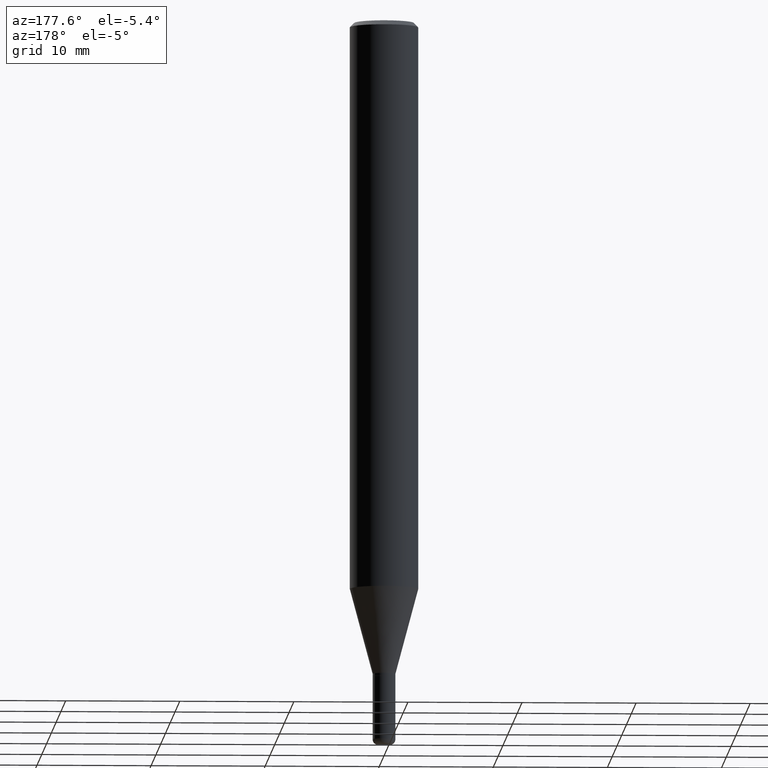
[diagram: clean part render]
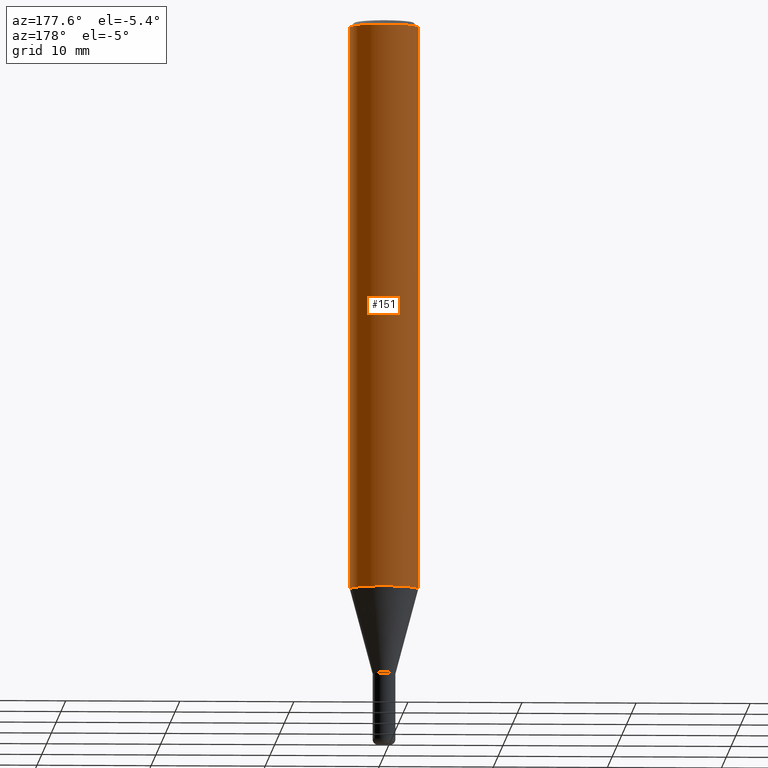
[diagram: same view with one face highlighted and labeled with its STEP entity id]
A machine part, auxiliary view. The second image highlights one B-rep face of the part: STEP entity #151.
In plain terms, the highlighted cylindrical surface (edge-blend (fillet) strip) has radius 2.9997 mm, axis along (-0, 0, 1).
Its self-contained STEP definition (entity closure, byte-faithful):
#34 = EDGE_CURVE ( 'NONE', #153, #351, #242, .T. ) ;
#38 = AXIS2_PLACEMENT_3D ( 'NONE', #444, #200, #245 ) ;
#42 = CARTESIAN_POINT ( 'NONE',  ( 0.1180999999999999966, -7.667645655887934594E-15, -1.959900998903951086 ) ) ;
#45 = DIRECTION ( 'NONE',  ( -2.445468806185136597E-29, 3.491481338843145583E-15, 1.000000000000000000 ) ) ;
#78 = CARTESIAN_POINT ( 'NONE',  ( 3.668203209277694140E-31, -5.237222008264703607E-17, -0.01499999999999995781 ) ) ;
#87 = EDGE_CURVE ( 'NONE', #152, #325, #155, .T. ) ;
#123 = AXIS2_PLACEMENT_3D ( 'NONE', #78, #45, #321 ) ;
#130 = EDGE_CURVE ( 'NONE', #153, #152, #481, .T. ) ;
#131 = DIRECTION ( 'NONE',  ( -2.445468806185136877E-29, 3.491481338843145188E-15, 1.000000000000000000 ) ) ;
#148 = LINE ( 'NONE', #269, #427 ) ;
#151 = ADVANCED_FACE ( 'NONE', ( #293 ), #290, .T. ) ;
#152 = VERTEX_POINT ( 'NONE', #251 ) ;
#153 = VERTEX_POINT ( 'NONE', #42 ) ;
#155 = CIRCLE ( 'NONE', #123, 0.1180999999999999966 ) ;
#180 = DIRECTION ( 'NONE',  ( -2.445468806185136877E-29, 3.491481338843145188E-15, 1.000000000000000000 ) ) ;
#188 = ORIENTED_EDGE ( 'NONE', *, *, #87, .F. ) ;
#200 = DIRECTION ( 'NONE',  ( -2.445468806185136597E-29, 3.491481338843145583E-15, 1.000000000000000000 ) ) ;
#202 = CARTESIAN_POINT ( 'NONE',  ( 0.1180999999999999966, -8.246878922347480654E-16, 5.758764772215000440E-30 ) ) ;
#242 = CIRCLE ( 'NONE', #342, 0.1180999999999999966 ) ;
#245 = DIRECTION ( 'NONE',  ( 1.000000000000000000, -6.982962677686266711E-15, 4.876176775795936353E-29 ) ) ;
#251 = CARTESIAN_POINT ( 'NONE',  ( 0.1180999999999999966, -8.770601123173951446E-16, -0.01499999999999995781 ) ) ;
#269 = CARTESIAN_POINT ( 'NONE',  ( -0.1180999999999999966, 8.391509709326782957E-16, -5.809262341591043784E-30 ) ) ;
#284 = VECTOR ( 'NONE', #131, 39.37007874015748143 ) ;
#290 = CYLINDRICAL_SURFACE ( 'NONE', #38, 0.1180999999999999966 ) ;
#293 = FACE_OUTER_BOUND ( 'NONE', #331, .T. ) ;
#299 = ORIENTED_EDGE ( 'NONE', *, *, #130, .F. ) ;
#312 = EDGE_CURVE ( 'NONE', #351, #325, #148, .T. ) ;
#321 = DIRECTION ( 'NONE',  ( 1.000000000000000000, -6.982962677686266711E-15, 0.000000000000000000 ) ) ;
#325 = VERTEX_POINT ( 'NONE', #411 ) ;
#331 = EDGE_LOOP ( 'NONE', ( #518, #420, #188, #299 ) ) ;
#342 = AXIS2_PLACEMENT_3D ( 'NONE', #460, #344, #502 ) ;
#344 = DIRECTION ( 'NONE',  ( -2.445468806185136597E-29, 3.491481338843145583E-15, 1.000000000000000000 ) ) ;
#351 = VERTEX_POINT ( 'NONE', #428 ) ;
#411 = CARTESIAN_POINT ( 'NONE',  ( -0.1180999999999999966, -2.608514020935237917E-15, -0.01499999999999995781 ) ) ;
#420 = ORIENTED_EDGE ( 'NONE', *, *, #312, .T. ) ;
#427 = VECTOR ( 'NONE', #180, 39.37007874015748143 ) ;
#428 = CARTESIAN_POINT ( 'NONE',  ( -0.1180999999999999966, -6.003806792720507346E-15, -1.959900998903951086 ) ) ;
#444 = CARTESIAN_POINT ( 'NONE',  ( 0.000000000000000000, 0.000000000000000000, 0.000000000000000000 ) ) ;
#460 = CARTESIAN_POINT ( 'NONE',  ( 4.792876756030702270E-29, -6.842957763653185543E-15, -1.959900998903951086 ) ) ;
#481 = LINE ( 'NONE', #202, #284 ) ;
#502 = DIRECTION ( 'NONE',  ( 1.000000000000000000, -6.982962677686265133E-15, 0.000000000000000000 ) ) ;
#518 = ORIENTED_EDGE ( 'NONE', *, *, #34, .T. ) ;